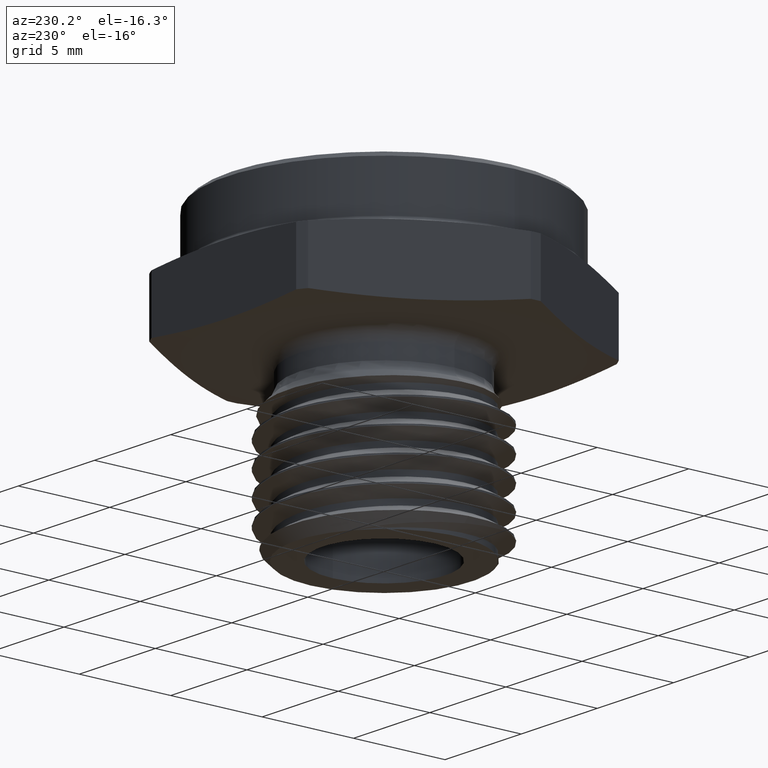
[diagram: clean part render]
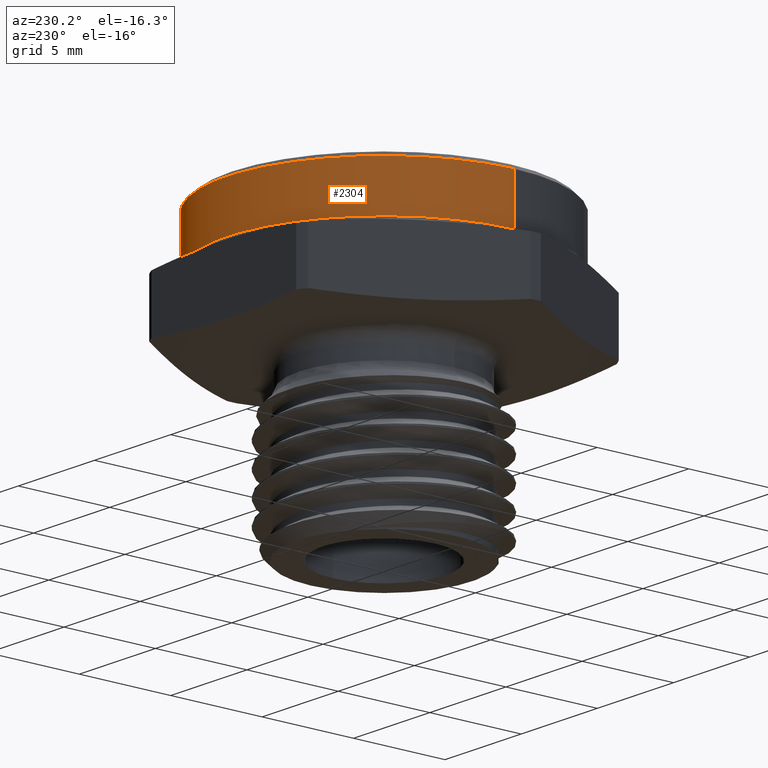
[diagram: same view with one face highlighted and labeled with its STEP entity id]
A machine part, auxiliary view. The second image highlights one B-rep face of the part: STEP entity #2304.
In plain terms, the highlighted cylindrical surface (partial cylindrical patch) has radius 8.5725 mm, axis along (-0, -0, -1).
Its self-contained STEP definition (entity closure, byte-faithful):
#128 = FACE_OUTER_BOUND ( 'NONE', #251, .T. ) ;
#137 = CYLINDRICAL_SURFACE ( 'NONE', #2073, 0.3374999999999998000 ) ;
#184 = LINE ( 'NONE', #314, #192 ) ;
#188 = CIRCLE ( 'NONE', #2040, 0.3374999999999998000 ) ;
#192 = VECTOR ( 'NONE', #309, 39.37007874015748100 ) ;
#201 = CIRCLE ( 'NONE', #2045, 0.3374999999999998000 ) ;
#203 = LINE ( 'NONE', #380, #206 ) ;
#206 = VECTOR ( 'NONE', #375, 39.37007874015748100 ) ;
#251 = EDGE_LOOP ( 'NONE', ( #2778, #2779, #2780, #2781 ) ) ;
#309 = DIRECTION ( 'NONE',  ( -0.0000000000000000000, -0.0000000000000000000, -1.000000000000000000 ) ) ;
#314 = CARTESIAN_POINT ( 'NONE',  ( -0.3374999999999998000, 0.0000000000000000000, 0.2600000000000000100 ) ) ;
#315 = CARTESIAN_POINT ( 'NONE',  ( 0.0000000000000000000, 0.0000000000000000000, 0.1464782722655601200 ) ) ;
#316 = DIRECTION ( 'NONE',  ( 6.123233995736748800E-017, 0.0000000000000000000, 1.000000000000000000 ) ) ;
#317 = DIRECTION ( 'NONE',  ( 1.000000000000000000, 0.0000000000000000000, -5.058977766044935000E-017 ) ) ;
#349 = CARTESIAN_POINT ( 'NONE',  ( 0.0000000000000000000, 0.0000000000000000000, 0.2500000000000006100 ) ) ;
#350 = DIRECTION ( 'NONE',  ( 0.0000000000000000000, 0.0000000000000000000, -1.000000000000000000 ) ) ;
#351 = DIRECTION ( 'NONE',  ( 1.000000000000000000, 0.0000000000000000000, 0.0000000000000000000 ) ) ;
#375 = DIRECTION ( 'NONE',  ( -0.0000000000000000000, -0.0000000000000000000, -1.000000000000000000 ) ) ;
#380 = CARTESIAN_POINT ( 'NONE',  ( 0.3374999999999998000, 4.133182947122313500E-017, 0.2600000000000000100 ) ) ;
#898 = VERTEX_POINT ( 'NONE', #2683 ) ;
#1717 = DIRECTION ( 'NONE',  ( -1.000000000000000000, 0.0000000000000000000, 0.0000000000000000000 ) ) ;
#1718 = CARTESIAN_POINT ( 'NONE',  ( 0.0000000000000000000, 0.0000000000000000000, 0.2600000000000000100 ) ) ;
#1719 = DIRECTION ( 'NONE',  ( -0.0000000000000000000, -0.0000000000000000000, -1.000000000000000000 ) ) ;
#1757 = CARTESIAN_POINT ( 'NONE',  ( 0.3374999999999998000, 4.133182947122313500E-017, 0.2500000000000006100 ) ) ;
#1777 = CARTESIAN_POINT ( 'NONE',  ( -0.3374999999999998000, 0.0000000000000000000, 0.2500000000000006100 ) ) ;
#1780 = CARTESIAN_POINT ( 'NONE',  ( 0.3374999999999998000, 4.133182947122313500E-017, 0.1464782722655600900 ) ) ;
#1933 = EDGE_CURVE ( 'NONE', #2344, #898, #188, .T. ) ;
#1934 = EDGE_CURVE ( 'NONE', #2340, #898, #184, .T. ) ;
#1944 = EDGE_CURVE ( 'NONE', #2340, #2339, #201, .T. ) ;
#1948 = EDGE_CURVE ( 'NONE', #2339, #2344, #203, .T. ) ;
#2040 = AXIS2_PLACEMENT_3D ( 'NONE', #315, #316, #317 ) ;
#2045 = AXIS2_PLACEMENT_3D ( 'NONE', #349, #350, #351 ) ;
#2073 = AXIS2_PLACEMENT_3D ( 'NONE', #1718, #1719, #1717 ) ;
#2304 = ADVANCED_FACE ( 'NONE', ( #128 ), #137, .T. ) ;
#2339 = VERTEX_POINT ( 'NONE', #1757 ) ;
#2340 = VERTEX_POINT ( 'NONE', #1777 ) ;
#2344 = VERTEX_POINT ( 'NONE', #1780 ) ;
#2683 = CARTESIAN_POINT ( 'NONE',  ( -0.3374999999999998000, 0.0000000000000000000, 0.1464782722655601200 ) ) ;
#2778 = ORIENTED_EDGE ( 'NONE', *, *, #1944, .T. ) ;
#2779 = ORIENTED_EDGE ( 'NONE', *, *, #1948, .T. ) ;
#2780 = ORIENTED_EDGE ( 'NONE', *, *, #1933, .T. ) ;
#2781 = ORIENTED_EDGE ( 'NONE', *, *, #1934, .F. ) ;